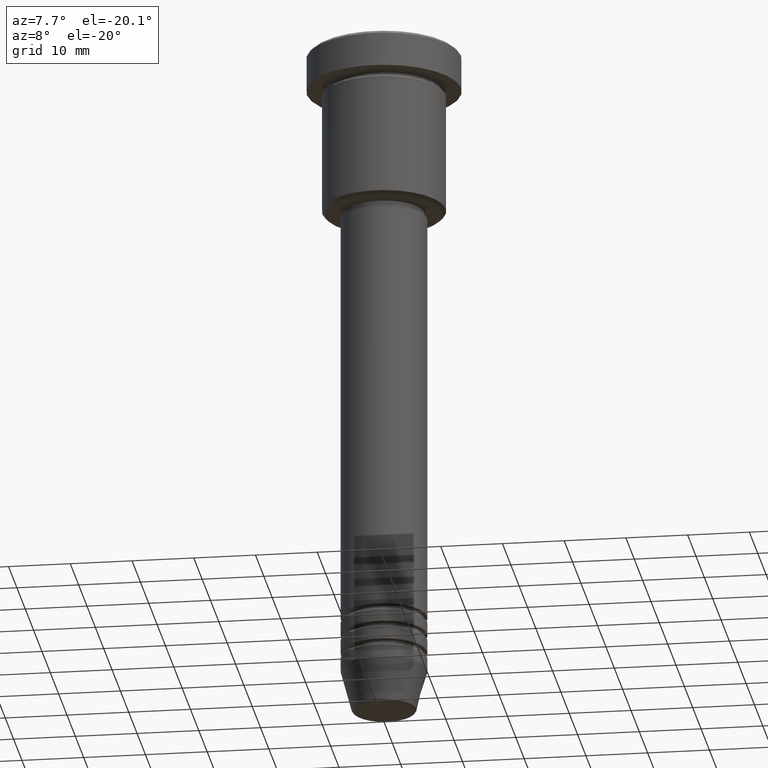
[diagram: clean part render]
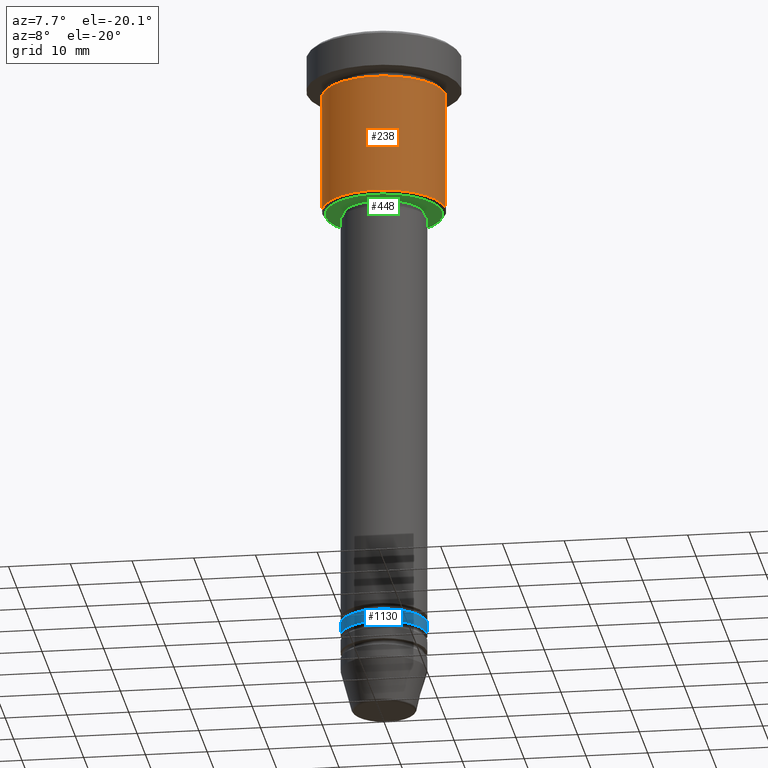
[diagram: same view with three faces highlighted in distinct colors, each labeled with its STEP entity id]
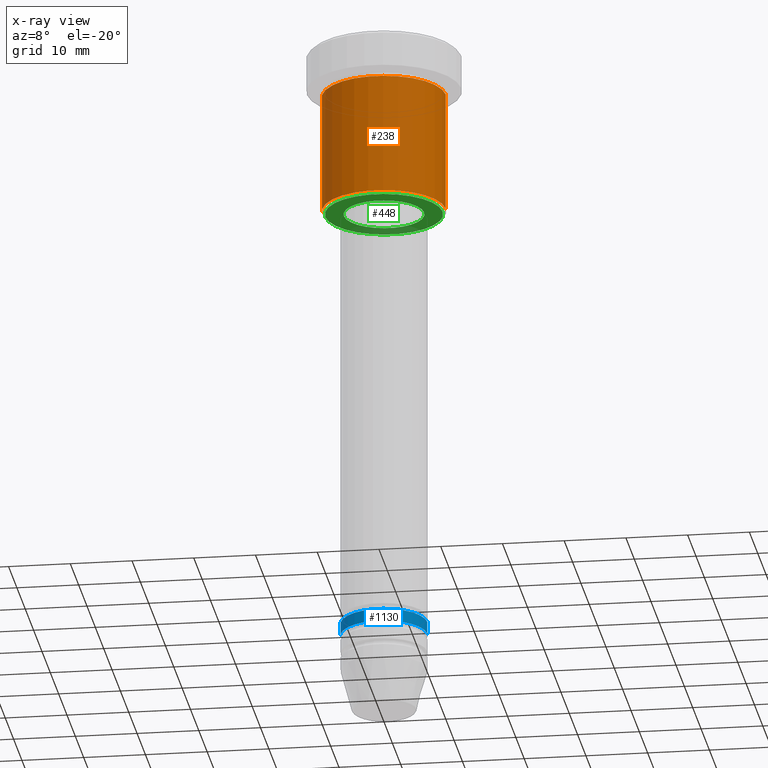
[diagram: x-ray of the same camera — body ghosted, the three highlighted faces saturated]
A machine part, auxiliary view with three faces highlighted in distinct colors.
The next image is the same camera in x-ray (body ghosted, the three faces saturated) — at least one of them is partly hidden behind the body in this view.
Their STEP definitions:

[orange] entity #238 — the highlighted cylindrical surface (partial cylindrical patch) has radius 10 mm, axis along (-0, -0, 1).
#45 = CIRCLE ( 'NONE', #789, 10.00000000000000000 ) ;
#110 = DIRECTION ( 'NONE',  ( -0.000000000000000000, -0.000000000000000000, 1.000000000000000000 ) ) ;
#126 = CARTESIAN_POINT ( 'NONE',  ( 0.000000000000000000, 0.000000000000000000, -6.999999999999996447 ) ) ;
#189 = CYLINDRICAL_SURFACE ( 'NONE', #435, 10.00000000000000000 ) ;
#207 = LINE ( 'NONE', #289, #841 ) ;
#232 = CARTESIAN_POINT ( 'NONE',  ( 10.00000000000000000, 0.000000000000000000, -6.999999999999996447 ) ) ;
#233 = ORIENTED_EDGE ( 'NONE', *, *, #755, .T. ) ;
#238 = ADVANCED_FACE ( 'NONE', ( #393 ), #189, .T. ) ;
#253 = EDGE_LOOP ( 'NONE', ( #941, #681, #233, #537 ) ) ;
#256 = CARTESIAN_POINT ( 'NONE',  ( -10.00000000000000000, 1.224646799147353256E-15, -6.999999999999996447 ) ) ;
#276 = CARTESIAN_POINT ( 'NONE',  ( -10.00000000000000000, 1.224646799147353256E-15, -26.49999999999998579 ) ) ;
#289 = CARTESIAN_POINT ( 'NONE',  ( -10.00000000000000000, 1.224646799147353256E-15, 0.000000000000000000 ) ) ;
#298 = DIRECTION ( 'NONE',  ( -0.000000000000000000, -0.000000000000000000, 1.000000000000000000 ) ) ;
#393 = FACE_OUTER_BOUND ( 'NONE', #253, .T. ) ;
#412 = DIRECTION ( 'NONE',  ( -0.000000000000000000, -0.000000000000000000, 1.000000000000000000 ) ) ;
#435 = AXIS2_PLACEMENT_3D ( 'NONE', #1121, #110, #573 ) ;
#530 = EDGE_CURVE ( 'NONE', #858, #998, #943, .T. ) ;
#537 = ORIENTED_EDGE ( 'NONE', *, *, #1091, .F. ) ;
#540 = DIRECTION ( 'NONE',  ( -0.000000000000000000, -0.000000000000000000, 1.000000000000000000 ) ) ;
#573 = DIRECTION ( 'NONE',  ( 1.000000000000000000, 0.000000000000000000, 0.000000000000000000 ) ) ;
#574 = CARTESIAN_POINT ( 'NONE',  ( 10.00000000000000000, 0.000000000000000000, -26.49999999999998579 ) ) ;
#587 = CARTESIAN_POINT ( 'NONE',  ( 0.000000000000000000, 0.000000000000000000, -26.49999999999998579 ) ) ;
#613 = VERTEX_POINT ( 'NONE', #232 ) ;
#671 = VECTOR ( 'NONE', #540, 1000.000000000000000 ) ;
#681 = ORIENTED_EDGE ( 'NONE', *, *, #530, .T. ) ;
#755 = EDGE_CURVE ( 'NONE', #998, #613, #1180, .T. ) ;
#772 = AXIS2_PLACEMENT_3D ( 'NONE', #587, #412, #1064 ) ;
#789 = AXIS2_PLACEMENT_3D ( 'NONE', #126, #1137, #851 ) ;
#841 = VECTOR ( 'NONE', #298, 1000.000000000000000 ) ;
#851 = DIRECTION ( 'NONE',  ( 1.000000000000000000, 0.000000000000000000, 0.000000000000000000 ) ) ;
#858 = VERTEX_POINT ( 'NONE', #276 ) ;
#881 = VERTEX_POINT ( 'NONE', #256 ) ;
#941 = ORIENTED_EDGE ( 'NONE', *, *, #975, .F. ) ;
#943 = CIRCLE ( 'NONE', #772, 10.00000000000000000 ) ;
#975 = EDGE_CURVE ( 'NONE', #858, #881, #207, .T. ) ;
#998 = VERTEX_POINT ( 'NONE', #574 ) ;
#1064 = DIRECTION ( 'NONE',  ( -1.000000000000000000, 0.000000000000000000, 0.000000000000000000 ) ) ;
#1077 = CARTESIAN_POINT ( 'NONE',  ( 10.00000000000000000, 0.000000000000000000, 0.000000000000000000 ) ) ;
#1091 = EDGE_CURVE ( 'NONE', #881, #613, #45, .T. ) ;
#1121 = CARTESIAN_POINT ( 'NONE',  ( 0.000000000000000000, 0.000000000000000000, 0.000000000000000000 ) ) ;
#1137 = DIRECTION ( 'NONE',  ( -0.000000000000000000, -0.000000000000000000, 1.000000000000000000 ) ) ;
#1180 = LINE ( 'NONE', #1077, #671 ) ;

[blue] entity #1130 — the highlighted cylindrical surface (partial cylindrical patch) has radius 7 mm, axis along (-0, -0, 1).
#40 = VERTEX_POINT ( 'NONE', #758 ) ;
#41 = CARTESIAN_POINT ( 'NONE',  ( 7.000000000000000000, 0.000000000000000000, -96.99999999999998579 ) ) ;
#92 = DIRECTION ( 'NONE',  ( 1.000000000000000000, 0.000000000000000000, 0.000000000000000000 ) ) ;
#158 = DIRECTION ( 'NONE',  ( 1.000000000000000000, 0.000000000000000000, 0.000000000000000000 ) ) ;
#186 = AXIS2_PLACEMENT_3D ( 'NONE', #914, #199, #92 ) ;
#188 = VERTEX_POINT ( 'NONE', #274 ) ;
#199 = DIRECTION ( 'NONE',  ( -0.000000000000000000, -0.000000000000000000, 1.000000000000000000 ) ) ;
#203 = CIRCLE ( 'NONE', #906, 7.000000000000000000 ) ;
#223 = VERTEX_POINT ( 'NONE', #981 ) ;
#250 = DIRECTION ( 'NONE',  ( -0.000000000000000000, -0.000000000000000000, 1.000000000000000000 ) ) ;
#255 = CARTESIAN_POINT ( 'NONE',  ( 0.000000000000000000, 0.000000000000000000, 0.000000000000000000 ) ) ;
#269 = EDGE_CURVE ( 'NONE', #223, #584, #986, .T. ) ;
#274 = CARTESIAN_POINT ( 'NONE',  ( 7.000000000000000000, 0.000000000000000000, -98.99999999999997158 ) ) ;
#277 = EDGE_CURVE ( 'NONE', #40, #188, #203, .T. ) ;
#335 = ORIENTED_EDGE ( 'NONE', *, *, #269, .F. ) ;
#358 = LINE ( 'NONE', #973, #985 ) ;
#463 = DIRECTION ( 'NONE',  ( 1.000000000000000000, 0.000000000000000000, 0.000000000000000000 ) ) ;
#467 = VECTOR ( 'NONE', #563, 1000.000000000000000 ) ;
#481 = DIRECTION ( 'NONE',  ( -0.000000000000000000, -0.000000000000000000, 1.000000000000000000 ) ) ;
#518 = DIRECTION ( 'NONE',  ( -0.000000000000000000, -0.000000000000000000, 1.000000000000000000 ) ) ;
#550 = CARTESIAN_POINT ( 'NONE',  ( -7.000000000000000000, 8.572527594031473190E-16, 0.000000000000000000 ) ) ;
#563 = DIRECTION ( 'NONE',  ( -0.000000000000000000, -0.000000000000000000, 1.000000000000000000 ) ) ;
#584 = VERTEX_POINT ( 'NONE', #41 ) ;
#685 = FACE_OUTER_BOUND ( 'NONE', #730, .T. ) ;
#690 = CYLINDRICAL_SURFACE ( 'NONE', #822, 7.000000000000000000 ) ;
#706 = ORIENTED_EDGE ( 'NONE', *, *, #1170, .T. ) ;
#730 = EDGE_LOOP ( 'NONE', ( #783, #876, #706, #335 ) ) ;
#758 = CARTESIAN_POINT ( 'NONE',  ( -7.000000000000000000, 8.572527594031473190E-16, -98.99999999999997158 ) ) ;
#783 = ORIENTED_EDGE ( 'NONE', *, *, #953, .F. ) ;
#822 = AXIS2_PLACEMENT_3D ( 'NONE', #255, #518, #158 ) ;
#829 = LINE ( 'NONE', #550, #467 ) ;
#876 = ORIENTED_EDGE ( 'NONE', *, *, #277, .T. ) ;
#906 = AXIS2_PLACEMENT_3D ( 'NONE', #936, #481, #463 ) ;
#914 = CARTESIAN_POINT ( 'NONE',  ( 0.000000000000000000, 0.000000000000000000, -96.99999999999998579 ) ) ;
#936 = CARTESIAN_POINT ( 'NONE',  ( 0.000000000000000000, 0.000000000000000000, -98.99999999999997158 ) ) ;
#953 = EDGE_CURVE ( 'NONE', #40, #223, #829, .T. ) ;
#973 = CARTESIAN_POINT ( 'NONE',  ( 7.000000000000000000, 0.000000000000000000, 0.000000000000000000 ) ) ;
#981 = CARTESIAN_POINT ( 'NONE',  ( -7.000000000000000000, 8.572527594031473190E-16, -96.99999999999998579 ) ) ;
#985 = VECTOR ( 'NONE', #250, 1000.000000000000000 ) ;
#986 = CIRCLE ( 'NONE', #186, 7.000000000000000000 ) ;
#1130 = ADVANCED_FACE ( 'NONE', ( #685 ), #690, .T. ) ;
#1170 = EDGE_CURVE ( 'NONE', #188, #584, #358, .T. ) ;

[green] entity #448 — the highlighted planar face has unit normal (0, 0, -1).
#60 = DIRECTION ( 'NONE',  ( -0.000000000000000000, -0.000000000000000000, 1.000000000000000000 ) ) ;
#67 = AXIS2_PLACEMENT_3D ( 'NONE', #955, #60, #1053 ) ;
#107 = EDGE_CURVE ( 'NONE', #976, #633, #1117, .T. ) ;
#136 = ORIENTED_EDGE ( 'NONE', *, *, #1124, .T. ) ;
#144 = CIRCLE ( 'NONE', #926, 6.500000000000000000 ) ;
#165 = CIRCLE ( 'NONE', #67, 6.500000000000000000 ) ;
#228 = CARTESIAN_POINT ( 'NONE',  ( 0.000000000000000000, 10.00000000000000000, -27.00000000000000000 ) ) ;
#270 = CARTESIAN_POINT ( 'NONE',  ( 0.000000000000000000, 0.000000000000000000, -27.00000000000000000 ) ) ;
#331 = DIRECTION ( 'NONE',  ( 1.000000000000000000, 0.000000000000000000, 0.000000000000000000 ) ) ;
#410 = PLANE ( 'NONE',  #809 ) ;
#416 = AXIS2_PLACEMENT_3D ( 'NONE', #270, #898, #639 ) ;
#420 = DIRECTION ( 'NONE',  ( -0.000000000000000000, -0.000000000000000000, 1.000000000000000000 ) ) ;
#430 = CARTESIAN_POINT ( 'NONE',  ( 0.000000000000000000, 0.000000000000000000, -27.00000000000000000 ) ) ;
#431 = CARTESIAN_POINT ( 'NONE',  ( 6.500000000000000000, 0.000000000000000000, -27.00000000000000000 ) ) ;
#448 = ADVANCED_FACE ( 'NONE', ( #1045, #1034 ), #410, .T. ) ;
#482 = EDGE_CURVE ( 'NONE', #1120, #1167, #144, .T. ) ;
#517 = DIRECTION ( 'NONE',  ( -1.000000000000000000, 0.000000000000000000, 0.000000000000000000 ) ) ;
#583 = EDGE_CURVE ( 'NONE', #633, #976, #1155, .T. ) ;
#592 = CARTESIAN_POINT ( 'NONE',  ( 0.000000000000000000, 0.000000000000000000, -27.00000000000000000 ) ) ;
#633 = VERTEX_POINT ( 'NONE', #659 ) ;
#639 = DIRECTION ( 'NONE',  ( -1.000000000000000000, 0.000000000000000000, 0.000000000000000000 ) ) ;
#659 = CARTESIAN_POINT ( 'NONE',  ( -9.499999999999980460, 1.194030629168668286E-15, -27.00000000000000000 ) ) ;
#764 = DIRECTION ( 'NONE',  ( 0.000000000000000000, 0.000000000000000000, -1.000000000000000000 ) ) ;
#770 = AXIS2_PLACEMENT_3D ( 'NONE', #430, #972, #517 ) ;
#809 = AXIS2_PLACEMENT_3D ( 'NONE', #228, #764, #857 ) ;
#817 = EDGE_LOOP ( 'NONE', ( #136, #1142 ) ) ;
#819 = CARTESIAN_POINT ( 'NONE',  ( 9.499999999999980460, 0.000000000000000000, -27.00000000000000000 ) ) ;
#834 = ORIENTED_EDGE ( 'NONE', *, *, #583, .T. ) ;
#844 = ORIENTED_EDGE ( 'NONE', *, *, #107, .T. ) ;
#857 = DIRECTION ( 'NONE',  ( -1.000000000000000000, 0.000000000000000000, -0.000000000000000000 ) ) ;
#872 = EDGE_LOOP ( 'NONE', ( #844, #834 ) ) ;
#898 = DIRECTION ( 'NONE',  ( 0.000000000000000000, 0.000000000000000000, -1.000000000000000000 ) ) ;
#926 = AXIS2_PLACEMENT_3D ( 'NONE', #592, #420, #331 ) ;
#955 = CARTESIAN_POINT ( 'NONE',  ( 0.000000000000000000, 0.000000000000000000, -27.00000000000000000 ) ) ;
#972 = DIRECTION ( 'NONE',  ( 0.000000000000000000, 0.000000000000000000, -1.000000000000000000 ) ) ;
#976 = VERTEX_POINT ( 'NONE', #819 ) ;
#1034 = FACE_BOUND ( 'NONE', #817, .T. ) ;
#1045 = FACE_OUTER_BOUND ( 'NONE', #872, .T. ) ;
#1049 = CARTESIAN_POINT ( 'NONE',  ( -6.500000000000000000, 7.960204194457795477E-16, -27.00000000000000000 ) ) ;
#1053 = DIRECTION ( 'NONE',  ( 1.000000000000000000, 0.000000000000000000, 0.000000000000000000 ) ) ;
#1117 = CIRCLE ( 'NONE', #416, 9.499999999999980460 ) ;
#1120 = VERTEX_POINT ( 'NONE', #1049 ) ;
#1124 = EDGE_CURVE ( 'NONE', #1167, #1120, #165, .T. ) ;
#1142 = ORIENTED_EDGE ( 'NONE', *, *, #482, .T. ) ;
#1155 = CIRCLE ( 'NONE', #770, 9.499999999999980460 ) ;
#1167 = VERTEX_POINT ( 'NONE', #431 ) ;